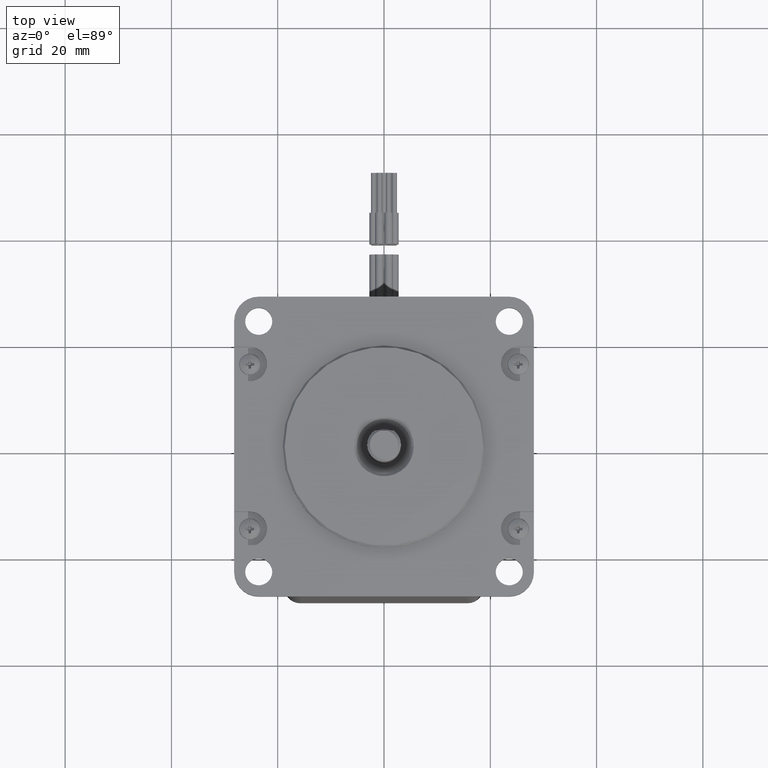
[diagram: clean part render]
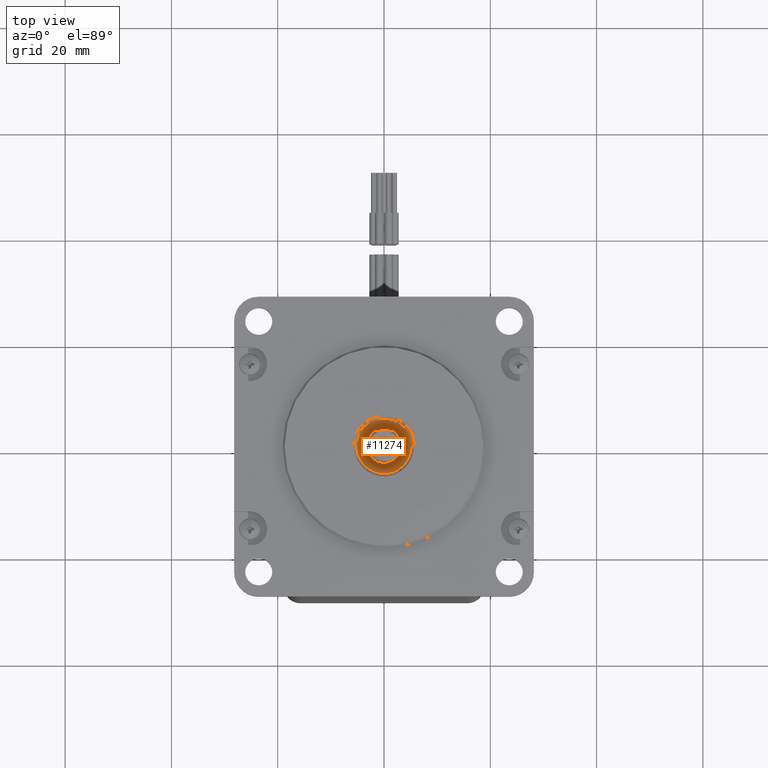
[diagram: same view with one face highlighted and labeled with its STEP entity id]
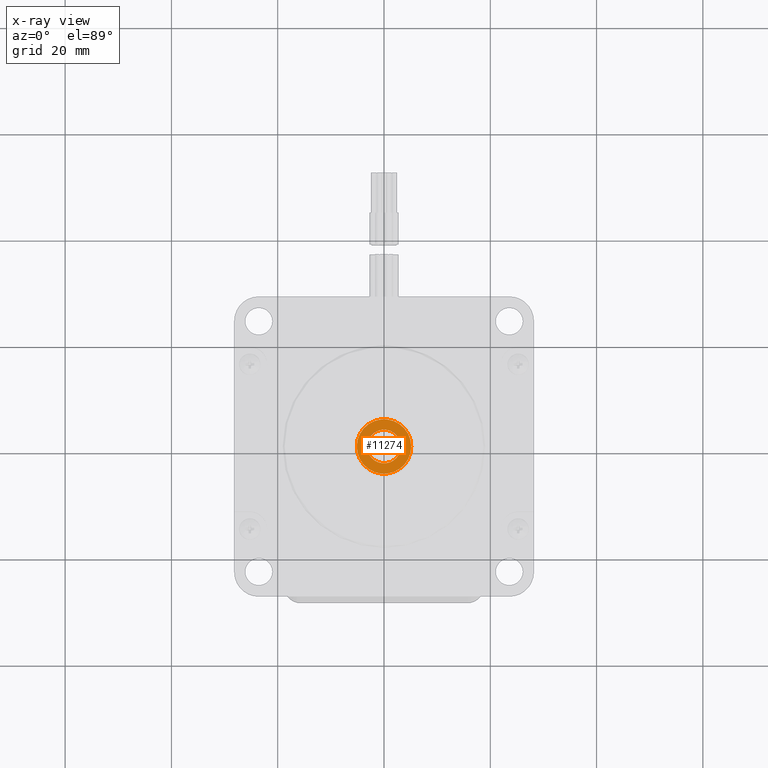
[diagram: x-ray of the same camera — body ghosted, the highlighted face saturated]
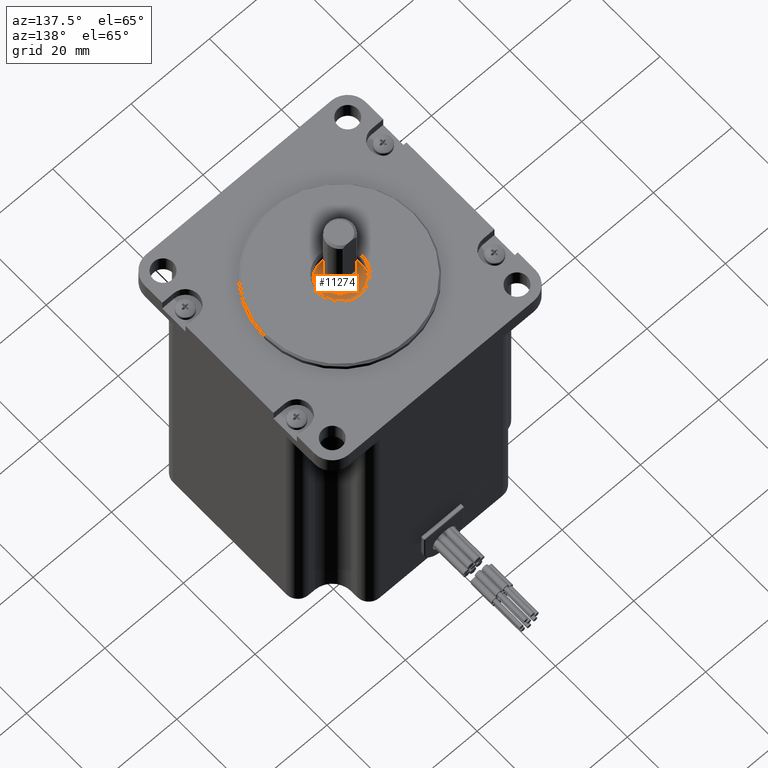
[diagram: same view with one face highlighted and labeled with its STEP entity id]
A machine part, top view. The second image highlights one B-rep face of the part: STEP entity #11274.
The next image is the same camera in x-ray: the body ghosted, the highlighted face saturated — about 3% of this face is hidden behind the body in this view.
A second angle (auxiliary view) of the same face is appended — the face is thin or edge-on in the first view.
In plain terms, the highlighted planar face has unit normal (0, 0, -1).
Its self-contained STEP definition (entity closure, byte-faithful):
#807 = CIRCLE ( 'NONE', #11146, 3.175000000000012700 ) ;
#816 = CIRCLE ( 'NONE', #9562, 5.125000000000011500 ) ;
#1370 = DIRECTION ( 'NONE',  ( 1.000000000000000000, 0.0000000000000000000, 0.0000000000000000000 ) ) ;
#1472 = CIRCLE ( 'NONE', #10592, 5.125000000000011500 ) ;
#1587 = DIRECTION ( 'NONE',  ( -0.0000000000000000000, -0.0000000000000000000, 1.000000000000000000 ) ) ;
#2386 = DIRECTION ( 'NONE',  ( 1.000000000000000000, 0.0000000000000000000, 0.0000000000000000000 ) ) ;
#2406 = ORIENTED_EDGE ( 'NONE', *, *, #3216, .T. ) ;
#2485 = AXIS2_PLACEMENT_3D ( 'NONE', #6264, #1587, #2386 ) ;
#3216 = EDGE_CURVE ( 'NONE', #9409, #4256, #1472, .T. ) ;
#3870 = CARTESIAN_POINT ( 'NONE',  ( 3.175000000000012700, 0.0000000000000000000, -0.6999999999999981800 ) ) ;
#3998 = FACE_BOUND ( 'NONE', #6892, .T. ) ;
#4093 = CARTESIAN_POINT ( 'NONE',  ( -3.175000000000013100, 3.888253587292862800E-016, -0.6999999999999998400 ) ) ;
#4256 = VERTEX_POINT ( 'NONE', #9850 ) ;
#4315 = EDGE_CURVE ( 'NONE', #10708, #11373, #4625, .T. ) ;
#4338 = AXIS2_PLACEMENT_3D ( 'NONE', #3870, #11421, #7628 ) ;
#4625 = CIRCLE ( 'NONE', #2485, 3.175000000000012700 ) ;
#5306 = DIRECTION ( 'NONE',  ( 1.000000000000000000, 0.0000000000000000000, 0.0000000000000000000 ) ) ;
#5889 = FACE_OUTER_BOUND ( 'NONE', #7298, .T. ) ;
#5948 = CARTESIAN_POINT ( 'NONE',  ( 0.0000000000000000000, 0.0000000000000000000, -0.6999999999999998400 ) ) ;
#5993 = DIRECTION ( 'NONE',  ( -0.0000000000000000000, -0.0000000000000000000, 1.000000000000000000 ) ) ;
#6264 = CARTESIAN_POINT ( 'NONE',  ( 0.0000000000000000000, 0.0000000000000000000, -0.6999999999999998400 ) ) ;
#6267 = CARTESIAN_POINT ( 'NONE',  ( 0.0000000000000000000, 0.0000000000000000000, -0.6999999999999964000 ) ) ;
#6313 = DIRECTION ( 'NONE',  ( -0.0000000000000000000, -0.0000000000000000000, 1.000000000000000000 ) ) ;
#6892 = EDGE_LOOP ( 'NONE', ( #7967, #8060 ) ) ;
#7298 = EDGE_LOOP ( 'NONE', ( #2406, #9675 ) ) ;
#7611 = CARTESIAN_POINT ( 'NONE',  ( 3.175000000000012700, 0.0000000000000000000, -0.6999999999999998400 ) ) ;
#7628 = DIRECTION ( 'NONE',  ( -1.000000000000000000, 0.0000000000000000000, -0.0000000000000000000 ) ) ;
#7721 = CARTESIAN_POINT ( 'NONE',  ( 5.125000000000011500, 0.0000000000000000000, -0.6999999999999964000 ) ) ;
#7967 = ORIENTED_EDGE ( 'NONE', *, *, #4315, .F. ) ;
#8060 = ORIENTED_EDGE ( 'NONE', *, *, #10763, .F. ) ;
#9073 = CARTESIAN_POINT ( 'NONE',  ( 0.0000000000000000000, 0.0000000000000000000, -0.6999999999999964000 ) ) ;
#9409 = VERTEX_POINT ( 'NONE', #7721 ) ;
#9562 = AXIS2_PLACEMENT_3D ( 'NONE', #6267, #6313, #5306 ) ;
#9675 = ORIENTED_EDGE ( 'NONE', *, *, #10166, .T. ) ;
#9850 = CARTESIAN_POINT ( 'NONE',  ( -5.125000000000011500, 6.276314845630199000E-016, -0.6999999999999964000 ) ) ;
#10010 = DIRECTION ( 'NONE',  ( 1.000000000000000000, 0.0000000000000000000, 0.0000000000000000000 ) ) ;
#10166 = EDGE_CURVE ( 'NONE', #4256, #9409, #816, .T. ) ;
#10467 = PLANE ( 'NONE',  #4338 ) ;
#10592 = AXIS2_PLACEMENT_3D ( 'NONE', #9073, #11967, #10010 ) ;
#10708 = VERTEX_POINT ( 'NONE', #7611 ) ;
#10763 = EDGE_CURVE ( 'NONE', #11373, #10708, #807, .T. ) ;
#11146 = AXIS2_PLACEMENT_3D ( 'NONE', #5948, #5993, #1370 ) ;
#11274 = ADVANCED_FACE ( 'NONE', ( #3998, #5889 ), #10467, .F. ) ;
#11373 = VERTEX_POINT ( 'NONE', #4093 ) ;
#11421 = DIRECTION ( 'NONE',  ( 0.0000000000000000000, 0.0000000000000000000, -1.000000000000000000 ) ) ;
#11967 = DIRECTION ( 'NONE',  ( -0.0000000000000000000, -0.0000000000000000000, 1.000000000000000000 ) ) ;